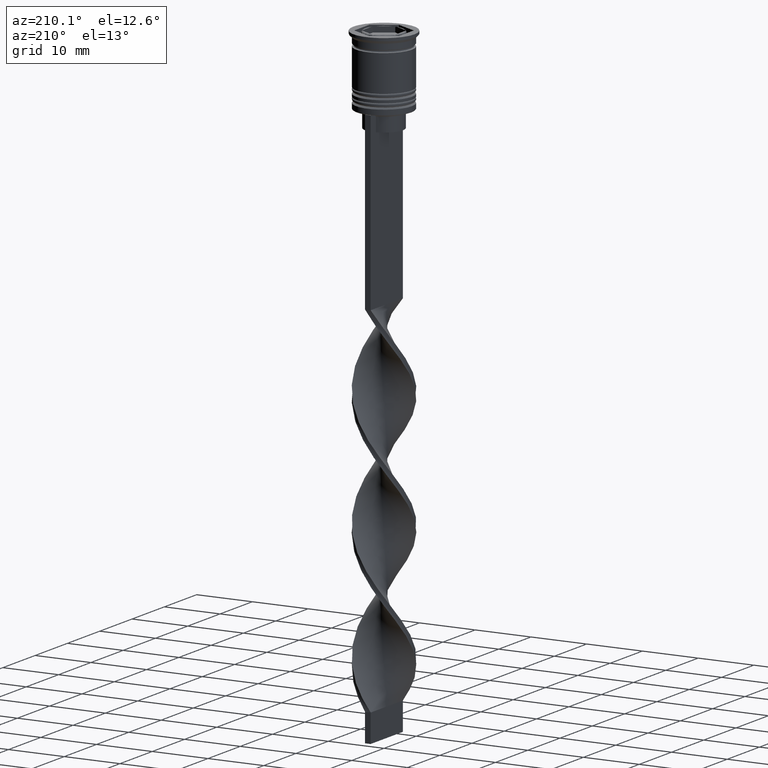
[diagram: clean part render]
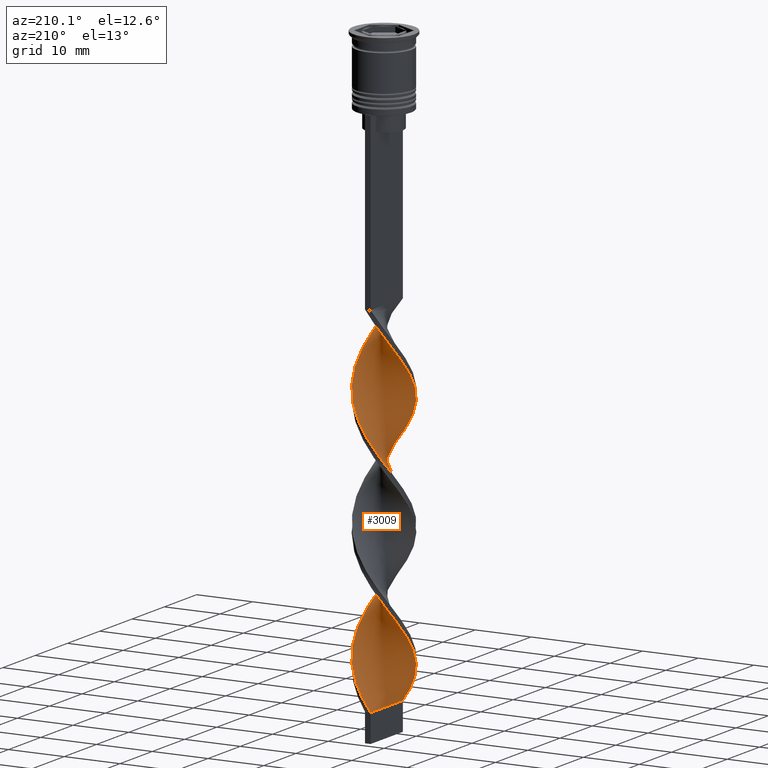
[diagram: same view with one face highlighted and labeled with its STEP entity id]
A machine part, auxiliary view. The second image highlights one B-rep face of the part: STEP entity #3009.
In plain terms, the highlighted face is a freeform B-spline surface patch.
Its self-contained STEP definition (entity closure, byte-faithful):
#2 = CARTESIAN_POINT ( 'NONE',  ( -4.903276030362609283, -1.099037838325638727, -76.32051282051281760 ) ) ;
#8 = CARTESIAN_POINT ( 'NONE',  ( -5.010902036907450174, -0.7163302668880179302, -98.47435897435896379 ) ) ;
#15 = CARTESIAN_POINT ( 'NONE',  ( 4.225728863414809133, -2.786661774892331245, -72.21794871794871540 ) ) ;
#22 = CARTESIAN_POINT ( 'NONE',  ( 5.023812710617931110, -0.1063289642275889874, -96.01282051282051100 ) ) ;
#27 = CARTESIAN_POINT ( 'NONE',  ( 5.036723384328412934, 0.5036723384328410935, -54.16666666666665719 ) ) ;
#34 = CARTESIAN_POINT ( 'NONE',  ( -2.941357917118425203, 4.074115069975904113, -48.42307692307691269 ) ) ;
#38 = CARTESIAN_POINT ( 'NONE',  ( 3.436045048790599132, 3.716969558312884558, -101.7564102564102484 ) ) ;
#44 = CARTESIAN_POINT ( 'NONE',  ( 2.256988544190329016, 4.530813501584093572, -83.70512820512820440 ) ) ;
#53 = CARTESIAN_POINT ( 'NONE',  ( -4.398951702833861610, -2.428831800708950883, -100.9358974358974308 ) ) ;
#82 = CARTESIAN_POINT ( 'NONE',  ( -4.497778769905805163, -2.240532556555384858, -77.96153846153845279 ) ) ;
#88 = VERTEX_POINT ( 'NONE', #3376 ) ;
#98 = CARTESIAN_POINT ( 'NONE',  ( 3.830886956102703245, 3.251815666602606569, -100.9358974358974308 ) ) ;
#108 = CARTESIAN_POINT ( 'NONE',  ( -5.023812710617932886, -0.1063289642275874608, -97.65384615384614619 ) ) ;
#117 = CARTESIAN_POINT ( 'NONE',  ( 2.941357917118426091, 4.074115069975901449, -102.5769230769230660 ) ) ;
#135 = CARTESIAN_POINT ( 'NONE',  ( 4.903276030362607507, 1.099037838325641392, -97.65384615384614619 ) ) ;
#147 = CARTESIAN_POINT ( 'NONE',  ( 2.941357917118426091, 4.074115069975901449, -102.5769230769230660 ) ) ;
#157 = CARTESIAN_POINT ( 'NONE',  ( -0.1071099161113027859, 5.060710991611132137, -44.32051282051282470 ) ) ;
#170 = CARTESIAN_POINT ( 'NONE',  ( -3.275699201900569069, -3.859023582904238303, -60.73076923076922640 ) ) ;
#178 = CARTESIAN_POINT ( 'NONE',  ( 2.766343873045447044, -4.194918542244165494, -46.78205128205127750 ) ) ;
#223 = CARTESIAN_POINT ( 'NONE',  ( 2.446670785446252161, -4.431260581638921892, -68.93589743589743080 ) ) ;
#229 = CARTESIAN_POINT ( 'NONE',  ( -4.852383656948343393, -1.305516313869969913, -56.62820512820513130 ) ) ;
#234 = CARTESIAN_POINT ( 'NONE',  ( -4.398951702833859834, 2.428831800708950883, -71.39743589743588359 ) ) ;
#240 = CARTESIAN_POINT ( 'NONE',  ( 1.107109916111302717, -4.939289008388868751, -44.32051282051282470 ) ) ;
#248 = CARTESIAN_POINT ( 'NONE',  ( -0.5000000000000006661, -5.000000000000000888, -64.83333333333332860 ) ) ;
#253 = CARTESIAN_POINT ( 'NONE',  ( -1.107109916111301606, 4.939289008388868751, -65.65384615384614619 ) ) ;
#258 = CARTESIAN_POINT ( 'NONE',  ( -4.497778769905806939, 2.240532556555386634, -94.37179487179486159 ) ) ;
#264 = CARTESIAN_POINT ( 'NONE',  ( -2.446670785446253049, 4.431260581638920115, -90.26923076923077360 ) ) ;
#268 = CARTESIAN_POINT ( 'NONE',  ( 4.398951702833859834, -2.428831800708950883, -92.73076923076922640 ) ) ;
#279 = CARTESIAN_POINT ( 'NONE',  ( -4.903276030362609283, 1.099037838325643168, -96.01282051282051100 ) ) ;
#287 = CARTESIAN_POINT ( 'NONE',  ( -1.107109916111305159, -4.939289008388870528, -64.01282051282051100 ) ) ;
#292 = CARTESIAN_POINT ( 'NONE',  ( 3.275699201900567292, -3.859023582904237415, -90.26923076923077360 ) ) ;
#298 = CARTESIAN_POINT ( 'NONE',  ( 0.5000000000000000000, 5.000000000000000888, -86.16666666666667140 ) ) ;
#306 = CARTESIAN_POINT ( 'NONE',  ( -4.104038128678487496, -2.962961240565977761, -59.08974358974358410 ) ) ;
#311 = CARTESIAN_POINT ( 'NONE',  ( 4.497778769905805163, 2.240532556555384414, -99.29487179487178139 ) ) ;
#315 = CARTESIAN_POINT ( 'NONE',  ( 4.225728863414809133, 2.786661774892327248, -57.44871794871794890 ) ) ;
#334 = CARTESIAN_POINT ( 'NONE',  ( 3.436045048790599132, 3.716969558312884558, -101.7564102564102484 ) ) ;
#343 = CARTESIAN_POINT ( 'NONE',  ( -4.225728863414810910, 2.786661774892329024, -93.55128205128204399 ) ) ;
#355 = CARTESIAN_POINT ( 'NONE',  ( 1.880887847392238132, 4.659641714287932501, -61.55128205128204399 ) ) ;
#371 = CARTESIAN_POINT ( 'NONE',  ( 0.5000000000000000000, -4.999999999999999112, -86.16666666666667140 ) ) ;
#384 = CARTESIAN_POINT ( 'NONE',  ( -3.436045048790600909, -3.716969558312882782, -80.42307692307691980 ) ) ;
#398 = CARTESIAN_POINT ( 'NONE',  ( 1.880887847392238132, 4.659641714287932501, -104.2179487179487012 ) ) ;
#405 = CARTESIAN_POINT ( 'NONE',  ( -3.689868665289524952, 3.410992411735108476, -69.75641025641024839 ) ) ;
#459 = CARTESIAN_POINT ( 'NONE',  ( 4.225728863414809133, -2.786661774892330801, -72.21794871794871540 ) ) ;
#477 = CARTESIAN_POINT ( 'NONE',  ( -0.7111074127247628551, 4.974366919274039844, -45.14102564102563520 ) ) ;
#496 = CARTESIAN_POINT ( 'NONE',  ( -1.682049230150816532, -4.735051254986481162, -63.19230769230768630 ) ) ;
#508 = CARTESIAN_POINT ( 'NONE',  ( 4.852383656948341617, -1.305516313869971246, -94.37179487179486159 ) ) ;
#515 = CARTESIAN_POINT ( 'NONE',  ( 5.023812710617932886, 0.1063289642275847546, -76.32051282051281760 ) ) ;
#524 = CARTESIAN_POINT ( 'NONE',  ( -1.315104909338222772, 4.888022846936949328, -45.96153846153845990 ) ) ;
#529 = CARTESIAN_POINT ( 'NONE',  ( -1.682049230150812980, 4.735051254986481162, -66.47435897435896379 ) ) ;
#534 = CARTESIAN_POINT ( 'NONE',  ( 3.275699201900569513, 3.859023582904238303, -82.06410256410255499 ) ) ;
#542 = CARTESIAN_POINT ( 'NONE',  ( -0.7111074127247628551, 4.974366919274039844, -87.80769230769230660 ) ) ;
#547 = CARTESIAN_POINT ( 'NONE',  ( 2.766343873045447044, -4.194918542244165494, -89.44871794871794179 ) ) ;
#553 = CARTESIAN_POINT ( 'NONE',  ( 3.436045048790599132, 3.716969558312884558, -59.08974358974359120 ) ) ;
#559 = CARTESIAN_POINT ( 'NONE',  ( 0.5000000000000000000, 5.000000000000000888, -43.50000000000000000 ) ) ;
#565 = CARTESIAN_POINT ( 'NONE',  ( -2.446670785446253493, -4.431260581638918339, -82.06410256410255499 ) ) ;
#576 = CARTESIAN_POINT ( 'NONE',  ( 4.769828676396805633, -1.694403338218443800, -73.85897435897436480 ) ) ;
#583 = CARTESIAN_POINT ( 'NONE',  ( 3.275699201900569513, 3.859023582904238303, -82.06410256410255499 ) ) ;
#588 = CARTESIAN_POINT ( 'NONE',  ( 4.693865276989234836, -1.894702360851923340, -50.88461538461537970 ) ) ;
#594 = CARTESIAN_POINT ( 'NONE',  ( -4.104038128678486608, -2.962961240565977317, -101.7564102564102484 ) ) ;
#600 = CARTESIAN_POINT ( 'NONE',  ( -1.682049230150816532, -4.735051254986481162, -105.8589743589743506 ) ) ;
#605 = CARTESIAN_POINT ( 'NONE',  ( 2.446670785446252605, 4.431260581638918339, -103.3974358974358836 ) ) ;
#609 = CARTESIAN_POINT ( 'NONE',  ( 4.398951702833859834, -2.428831800708950883, -92.73076923076922640 ) ) ;
#628 = CARTESIAN_POINT ( 'NONE',  ( 5.023812710617931110, -0.1063289642275889874, -96.01282051282051100 ) ) ;
#645 = CARTESIAN_POINT ( 'NONE',  ( 4.693865276989234836, -1.894702360851923117, -93.55128205128204399 ) ) ;
#653 = CARTESIAN_POINT ( 'NONE',  ( -4.104038128678487496, -2.962961240565977761, -101.7564102564102484 ) ) ;
#663 = CARTESIAN_POINT ( 'NONE',  ( 0.7111074127247642984, 4.974366919274038068, -105.8589743589743506 ) ) ;
#677 = CARTESIAN_POINT ( 'NONE',  ( -4.225728863414810910, -2.786661774892325028, -78.78205128205127039 ) ) ;
#713 = CARTESIAN_POINT ( 'NONE',  ( -4.104038128678486608, -2.962961240565977317, -59.08974358974359120 ) ) ;
#718 = CARTESIAN_POINT ( 'NONE',  ( 0.7111074127247642984, 4.974366919274038068, -105.8589743589743506 ) ) ;
#728 = CARTESIAN_POINT ( 'NONE',  ( -0.5000000000000006661, -5.000000000000000888, -64.83333333333332860 ) ) ;
#734 = VECTOR ( 'NONE', #3157, 1000.000000000000000 ) ;
#779 = CARTESIAN_POINT ( 'NONE',  ( -2.941357917118426535, -4.074115069975901449, -81.24358974358973740 ) ) ;
#785 = CARTESIAN_POINT ( 'NONE',  ( 3.436045048790597800, -3.716969558312888555, -70.57692307692306599 ) ) ;
#787 = CARTESIAN_POINT ( 'NONE',  ( -0.5000000000000002220, -1.666666666666667851, -107.5000000000000000 ) ) ;
#794 = CARTESIAN_POINT ( 'NONE',  ( 4.769828676396804745, -1.694403338218443578, -73.85897435897436480 ) ) ;
#800 = CARTESIAN_POINT ( 'NONE',  ( 4.769828676396803857, 1.694403338218442689, -55.80769230769230660 ) ) ;
#808 = CARTESIAN_POINT ( 'NONE',  ( -5.023812710617932886, -0.1063289642275874608, -97.65384615384614619 ) ) ;
#815 = CARTESIAN_POINT ( 'NONE',  ( -4.693865276989236612, -1.894702360851923784, -57.44871794871794890 ) ) ;
#818 = CARTESIAN_POINT ( 'NONE',  ( -4.693865276989233060, 1.894702360851926004, -72.21794871794871540 ) ) ;
#823 = CARTESIAN_POINT ( 'NONE',  ( 5.036723384328414710, -0.5036723384328424258, -75.49999999999998579 ) ) ;
#831 = CARTESIAN_POINT ( 'NONE',  ( -1.880887847392238132, 4.659641714287934278, -46.78205128205127750 ) ) ;
#837 = CARTESIAN_POINT ( 'NONE',  ( 1.107109916111302717, -4.939289008388868751, -86.98717948717948900 ) ) ;
#845 = CARTESIAN_POINT ( 'NONE',  ( -3.830886956102704133, 3.251815666602608346, -92.73076923076922640 ) ) ;
#852 = CARTESIAN_POINT ( 'NONE',  ( -2.256988544190328572, -4.530813501584093572, -62.37179487179486870 ) ) ;
#857 = LINE ( 'NONE', #2850, #734 ) ;
#860 = CARTESIAN_POINT ( 'NONE',  ( 4.104038128678484831, -2.962961240565978205, -49.24358974358974450 ) ) ;
#869 = CARTESIAN_POINT ( 'NONE',  ( -1.880887847392238132, 4.659641714287934278, -89.44871794871794179 ) ) ;
#879 = CARTESIAN_POINT ( 'NONE',  ( 2.941357917118424758, -4.074115069975905001, -69.75641025641024839 ) ) ;
#889 = CARTESIAN_POINT ( 'NONE',  ( -2.256988544190328572, -4.530813501584093572, -105.0384615384615330 ) ) ;
#907 = CARTESIAN_POINT ( 'NONE',  ( 4.852383656948341617, -1.305516313869971246, -94.37179487179486159 ) ) ;
#924 = CARTESIAN_POINT ( 'NONE',  ( 1.682049230150814534, -4.735051254986480274, -87.80769230769230660 ) ) ;
#942 = CARTESIAN_POINT ( 'NONE',  ( -5.036723384328412934, -0.5036723384328404274, -75.49999999999998579 ) ) ;
#946 = B_SPLINE_CURVE_WITH_KNOTS ( 'NONE', 3,
 ( #1976, #787, #1934, #1695 ),
 .UNSPECIFIED., .F., .F.,
 ( 4, 4 ),
 ( 0.000000000000000000, 1.000000000000000000 ),
 .UNSPECIFIED. ) ;
#949 = CARTESIAN_POINT ( 'NONE',  ( -5.010902036907449286, -0.7163302668880179302, -98.47435897435896379 ) ) ;
#960 = CARTESIAN_POINT ( 'NONE',  ( -4.398951702833859834, 2.428831800708950883, -71.39743589743588359 ) ) ;
#971 = CARTESIAN_POINT ( 'NONE',  ( 2.256988544190326351, -4.530813501584092684, -45.96153846153845990 ) ) ;
#993 = CARTESIAN_POINT ( 'NONE',  ( -4.769828676396804745, 1.694403338218444244, -52.52564102564103621 ) ) ;
#1003 = CARTESIAN_POINT ( 'NONE',  ( 0.5000000000000000000, -4.999999999999999112, -43.50000000000000000 ) ) ;
#1011 = CARTESIAN_POINT ( 'NONE',  ( -2.256988544190328572, -4.530813501584093572, -62.37179487179486870 ) ) ;
#1063 = CARTESIAN_POINT ( 'NONE',  ( 0.5000000000000000000, -4.999999999999999112, -86.16666666666667140 ) ) ;
#1071 = CARTESIAN_POINT ( 'NONE',  ( -4.497778769905806939, 2.240532556555386634, -51.70512820512820440 ) ) ;
#1079 = CARTESIAN_POINT ( 'NONE',  ( -1.682049230150816532, -4.735051254986481162, -63.19230769230768630 ) ) ;
#1083 = CARTESIAN_POINT ( 'NONE',  ( -5.010902036907447510, 0.7163302668880177082, -73.85897435897436480 ) ) ;
#1090 = CARTESIAN_POINT ( 'NONE',  ( 4.903276030362609283, -1.099037838325644945, -74.67948717948718240 ) ) ;
#1096 = CARTESIAN_POINT ( 'NONE',  ( 1.682049230150819419, 4.735051254986480274, -84.52564102564103621 ) ) ;
#1102 = CARTESIAN_POINT ( 'NONE',  ( 4.497778769905805163, 2.240532556555384414, -56.62820512820513130 ) ) ;
#1108 = CARTESIAN_POINT ( 'NONE',  ( 1.682049230150814534, -4.735051254986480274, -45.14102564102563520 ) ) ;
#1116 = CARTESIAN_POINT ( 'NONE',  ( -4.497778769905806939, 2.240532556555386634, -51.70512820512820440 ) ) ;
#1123 = CARTESIAN_POINT ( 'NONE',  ( -1.880887847392241019, -4.659641714287931613, -82.88461538461537259 ) ) ;
#1127 = CARTESIAN_POINT ( 'NONE',  ( -1.682049230150816532, -4.735051254986481162, -105.8589743589743506 ) ) ;
#1137 = CARTESIAN_POINT ( 'NONE',  ( -5.023812710617932886, -0.1063289642275874608, -54.98717948717948190 ) ) ;
#1142 = CARTESIAN_POINT ( 'NONE',  ( 4.903276030362607507, 1.099037838325641392, -97.65384615384614619 ) ) ;
#1148 = CARTESIAN_POINT ( 'NONE',  ( -4.398951702833861610, -2.428831800708950883, -100.9358974358974308 ) ) ;
#1155 = CARTESIAN_POINT ( 'NONE',  ( -4.398951702833861610, -2.428831800708950883, -58.26923076923076650 ) ) ;
#1161 = CARTESIAN_POINT ( 'NONE',  ( 1.315104909338224104, 4.888022846936946664, -105.0384615384615188 ) ) ;
#1172 = CARTESIAN_POINT ( 'NONE',  ( 5.010902036907451063, 0.7163302668880160429, -77.14102564102563520 ) ) ;
#1192 = CARTESIAN_POINT ( 'NONE',  ( -1.107109916111301828, 4.939289008388868751, -65.65384615384614619 ) ) ;
#1209 = CARTESIAN_POINT ( 'NONE',  ( 1.315104909338224326, 4.888022846936946664, -62.37179487179486870 ) ) ;
#1218 =( BOUNDED_SURFACE ( )  B_SPLINE_SURFACE ( 1, 2, ( 
 ( #3609, #157, #477, #2430, #3343, #1581, #2710, #2162, #3652, #2777, #1071, #993, #2729, #2446, #3302, #1281, #1301, #1917, #3287, #713, #3594, #170, #3063, #1011, #496, #3324, #728, #1862, #1634, #3024, #2223, #223, #3363, #785, #1933, #459, #2742, #576, #1090, #823, #515, #1172, #1694, #2241, #3100, #1414, #3444, #534, #1733, #44, #3142, #3469, #298, #2298, #1676, #1954, #869, #2816, #1716, #3381, #845, #2322, #258, #1393, #279, #2525, #808, #8, #2280, #1994, #1148, #594, #2799, #2563, #1658, #889, #1127, #2541, #2875 ),
 ( #3688, #240, #1108, #3423, #3083, #1451, #2262, #2858, #2020, #1431, #1375, #2581, #3672, #27, #3401, #1975, #3119, #315, #2596, #553, #2836, #3166, #355, #1209, #2035, #2914, #3221, #1192, #1790, #1490, #3486, #2073, #405, #2642, #960, #1774, #3253, #1541, #3520, #942, #1523, #2390, #82, #677, #2655, #384, #2688, #2358, #3501, #2108, #3185, #2944, #371, #1224, #924, #3202, #2338, #2890, #2670, #2091, #609, #645, #907, #1753, #628, #2053, #135, #2931, #3236, #1505, #98, #334, #117, #2373, #3538, #1261, #663, #1804, #1243 ) ),
 .UNSPECIFIED., .F., .F., .F. ) 
 B_SPLINE_SURFACE_WITH_KNOTS ( ( 2, 2 ),
 ( 3, 2, 2, 2, 2, 2, 2, 2, 2, 2, 2, 2, 2, 2, 2, 2, 2, 2, 2, 2, 2, 2, 2, 2, 2, 2, 2, 2, 2, 2, 2, 2, 2, 2, 2, 2, 2, 2, 2, 3 ),
 ( 0.000000000000000000, 1.000000000000000000 ),
 ( 0.000000000000000000, 0.01923076923076923184, 0.03846153846153846367, 0.05769230769230769551, 0.07692307692307692735, 0.09615384615384615918, 0.1153846153846153910, 0.1346153846153846090, 0.1538461538461538547, 0.1730769230769230727, 0.1923076923076923184, 0.2115384615384615363, 0.2307692307692307820, 0.2500000000000000000, 0.2692307692307692180, 0.2884615384615384359, 0.3076923076923077094, 0.3269230769230769273, 0.3461538461538461453, 0.3653846153846153633, 0.3846153846153846367, 0.4038461538461538547, 0.4230769230769230727, 0.4423076923076922906, 0.4615384615384615641, 0.4807692307692307820, 0.5000000000000000000, 0.5192307692307692735, 0.5384615384615384359, 0.5576923076923077094, 0.5769230769230768718, 0.5961538461538461453, 0.6153846153846154188, 0.6346153846153845812, 0.6538461538461538547, 0.6730769230769231282, 0.6923076923076922906, 0.7115384615384615641, 0.7307692307692307265, 0.7500000000000000000 ),
 .UNSPECIFIED. ) 
 GEOMETRIC_REPRESENTATION_ITEM ( )  RATIONAL_B_SPLINE_SURFACE ( (
 ( 1.000000000000000000, 0.9927088740980539727, 1.000000000000000000, 0.9927088740980539727, 1.000000000000000000, 0.9927088740980539727, 1.000000000000000000, 0.9927088740980539727, 1.000000000000000000, 0.9927088740980539727, 1.000000000000000000, 0.9927088740980539727, 1.000000000000000000, 0.9927088740980539727, 1.000000000000000000, 0.9927088740980539727, 1.000000000000000000, 0.9927088740980539727, 1.000000000000000000, 0.9927088740980539727, 1.000000000000000000, 0.9927088740980539727, 1.000000000000000000, 0.9927088740980539727, 1.000000000000000000, 0.9927088740980539727, 1.000000000000000000, 0.9927088740980539727, 1.000000000000000000, 0.9927088740980539727, 1.000000000000000000, 0.9927088740980539727, 1.000000000000000000, 0.9927088740980539727, 1.000000000000000000, 0.9927088740980539727, 1.000000000000000000, 0.9927088740980539727, 1.000000000000000000, 0.9927088740980539727, 1.000000000000000000, 0.9927088740980539727, 1.000000000000000000, 0.9927088740980539727, 1.000000000000000000, 0.9927088740980539727, 1.000000000000000000, 0.9927088740980539727, 1.000000000000000000, 0.9927088740980539727, 1.000000000000000000, 0.9927088740980539727, 1.000000000000000000, 0.9927088740980539727, 1.000000000000000000, 0.9927088740980539727, 1.000000000000000000, 0.9927088740980539727, 1.000000000000000000, 0.9927088740980539727, 1.000000000000000000, 0.9927088740980539727, 1.000000000000000000, 0.9927088740980539727, 1.000000000000000000, 0.9927088740980539727, 1.000000000000000000, 0.9927088740980539727, 1.000000000000000000, 0.9927088740980539727, 1.000000000000000000, 0.9927088740980539727, 1.000000000000000000, 0.9927088740980539727, 1.000000000000000000, 0.9927088740980539727, 1.000000000000000000, 0.9927088740980539727, 1.000000000000000000),
 ( 1.000000000000000000, 0.9927088740980539727, 1.000000000000000000, 0.9927088740980539727, 1.000000000000000000, 0.9927088740980539727, 1.000000000000000000, 0.9927088740980539727, 1.000000000000000000, 0.9927088740980539727, 1.000000000000000000, 0.9927088740980539727, 1.000000000000000000, 0.9927088740980539727, 1.000000000000000000, 0.9927088740980539727, 1.000000000000000000, 0.9927088740980539727, 1.000000000000000000, 0.9927088740980539727, 1.000000000000000000, 0.9927088740980539727, 1.000000000000000000, 0.9927088740980539727, 1.000000000000000000, 0.9927088740980539727, 1.000000000000000000, 0.9927088740980539727, 1.000000000000000000, 0.9927088740980539727, 1.000000000000000000, 0.9927088740980539727, 1.000000000000000000, 0.9927088740980539727, 1.000000000000000000, 0.9927088740980539727, 1.000000000000000000, 0.9927088740980539727, 1.000000000000000000, 0.9927088740980539727, 1.000000000000000000, 0.9927088740980539727, 1.000000000000000000, 0.9927088740980539727, 1.000000000000000000, 0.9927088740980539727, 1.000000000000000000, 0.9927088740980539727, 1.000000000000000000, 0.9927088740980539727, 1.000000000000000000, 0.9927088740980539727, 1.000000000000000000, 0.9927088740980539727, 1.000000000000000000, 0.9927088740980539727, 1.000000000000000000, 0.9927088740980539727, 1.000000000000000000, 0.9927088740980539727, 1.000000000000000000, 0.9927088740980539727, 1.000000000000000000, 0.9927088740980539727, 1.000000000000000000, 0.9927088740980539727, 1.000000000000000000, 0.9927088740980539727, 1.000000000000000000, 0.9927088740980539727, 1.000000000000000000, 0.9927088740980539727, 1.000000000000000000, 0.9927088740980539727, 1.000000000000000000, 0.9927088740980539727, 1.000000000000000000, 0.9927088740980539727, 1.000000000000000000) ) ) 
 REPRESENTATION_ITEM ( '' )  SURFACE ( )  );
#1224 = CARTESIAN_POINT ( 'NONE',  ( 1.107109916111302717, -4.939289008388868751, -86.98717948717948900 ) ) ;
#1243 = CARTESIAN_POINT ( 'NONE',  ( -0.4999999999999993339, 4.999999999999999112, -107.5000000000000000 ) ) ;
#1252 = CARTESIAN_POINT ( 'NONE',  ( -4.693865276989236612, -1.894702360851923784, -100.1153846153846132 ) ) ;
#1255 = CARTESIAN_POINT ( 'NONE',  ( 0.1071099161113048537, 5.060710991611129472, -106.6794871794871824 ) ) ;
#1261 = CARTESIAN_POINT ( 'NONE',  ( 1.315104909338224326, 4.888022846936946664, -105.0384615384615330 ) ) ;
#1281 = CARTESIAN_POINT ( 'NONE',  ( -5.010902036907450174, -0.7163302668880179302, -55.80769230769230660 ) ) ;
#1301 = CARTESIAN_POINT ( 'NONE',  ( -4.852383656948343393, -1.305516313869969913, -56.62820512820513130 ) ) ;
#1313 = CARTESIAN_POINT ( 'NONE',  ( 3.275699201900567292, -3.859023582904237415, -47.60256410256409509 ) ) ;
#1362 = CARTESIAN_POINT ( 'NONE',  ( -0.7111074127247628551, 4.974366919274039844, -45.14102564102563520 ) ) ;
#1366 = CARTESIAN_POINT ( 'NONE',  ( 2.941357917118426091, 4.074115069975901449, -59.91025641025640880 ) ) ;
#1375 = CARTESIAN_POINT ( 'NONE',  ( 4.852383656948341617, -1.305516313869971246, -51.70512820512820440 ) ) ;
#1382 = CARTESIAN_POINT ( 'NONE',  ( 2.256988544190329016, 4.530813501584093572, -83.70512820512820440 ) ) ;
#1386 = CARTESIAN_POINT ( 'NONE',  ( -4.225728863414810910, -2.786661774892325028, -78.78205128205127039 ) ) ;
#1393 = CARTESIAN_POINT ( 'NONE',  ( -4.769828676396804745, 1.694403338218444244, -95.19230769230769340 ) ) ;
#1399 = CARTESIAN_POINT ( 'NONE',  ( 5.010902036907450174, 0.7163302668880160429, -77.14102564102563520 ) ) ;
#1407 = CARTESIAN_POINT ( 'NONE',  ( -2.766343873045446600, 4.194918542244165494, -68.11538461538459899 ) ) ;
#1414 = CARTESIAN_POINT ( 'NONE',  ( 4.104038128678487496, 2.962961240565975096, -80.42307692307691980 ) ) ;
#1421 = CARTESIAN_POINT ( 'NONE',  ( 3.689868665289528504, 3.410992411735106700, -81.24358974358973740 ) ) ;
#1425 = CARTESIAN_POINT ( 'NONE',  ( 5.010902036907448398, -0.7163302668880181523, -95.19230769230769340 ) ) ;
#1431 = CARTESIAN_POINT ( 'NONE',  ( 4.693865276989234836, -1.894702360851923117, -50.88461538461538680 ) ) ;
#1443 = CARTESIAN_POINT ( 'NONE',  ( 4.225728863414809133, 2.786661774892327692, -100.1153846153846132 ) ) ;
#1451 = CARTESIAN_POINT ( 'NONE',  ( 3.275699201900567736, -3.859023582904237415, -47.60256410256408799 ) ) ;
#1482 = CARTESIAN_POINT ( 'NONE',  ( -3.436045048790599132, 3.716969558312887667, -91.91025641025643722 ) ) ;
#1490 = CARTESIAN_POINT ( 'NONE',  ( -2.256988544190325019, 4.530813501584093572, -67.29487179487178139 ) ) ;
#1505 = CARTESIAN_POINT ( 'NONE',  ( 4.225728863414809133, 2.786661774892327248, -100.1153846153846274 ) ) ;
#1514 = CARTESIAN_POINT ( 'NONE',  ( -1.107109916111305159, -4.939289008388870528, -106.6794871794871824 ) ) ;
#1523 = CARTESIAN_POINT ( 'NONE',  ( -4.903276030362609283, -1.099037838325638727, -76.32051282051281760 ) ) ;
#1534 = CARTESIAN_POINT ( 'NONE',  ( -2.941357917118425203, 4.074115069975904113, -91.08974358974359120 ) ) ;
#1541 = CARTESIAN_POINT ( 'NONE',  ( -5.010902036907448398, 0.7163302668880177082, -73.85897435897436480 ) ) ;
#1581 = CARTESIAN_POINT ( 'NONE',  ( -2.446670785446253049, 4.431260581638921003, -47.60256410256408799 ) ) ;
#1634 = CARTESIAN_POINT ( 'NONE',  ( 0.7111074127247614118, -4.974366919274040733, -66.47435897435896379 ) ) ;
#1644 = CARTESIAN_POINT ( 'NONE',  ( -2.446670785446253049, 4.431260581638920115, -47.60256410256409509 ) ) ;
#1651 = CARTESIAN_POINT ( 'NONE',  ( -5.036723384328413822, -0.5036723384328405384, -75.50000000000000000 ) ) ;
#1658 = CARTESIAN_POINT ( 'NONE',  ( -2.766343873045448376, -4.194918542244166382, -104.2179487179487012 ) ) ;
#1661 = VERTEX_POINT ( 'NONE', #3616 ) ;
#1664 = CARTESIAN_POINT ( 'NONE',  ( -0.1071099161113027859, 5.060710991611131249, -44.32051282051282470 ) ) ;
#1669 = CARTESIAN_POINT ( 'NONE',  ( 3.689868665289525396, -3.410992411735107588, -48.42307692307691269 ) ) ;
#1676 = CARTESIAN_POINT ( 'NONE',  ( -0.7111074127247628551, 4.974366919274039844, -87.80769230769230660 ) ) ;
#1682 = CARTESIAN_POINT ( 'NONE',  ( -1.315104909338222772, 4.888022846936949328, -88.62820512820512420 ) ) ;
#1687 = CARTESIAN_POINT ( 'NONE',  ( -3.689868665289524952, 3.410992411735108476, -69.75641025641024839 ) ) ;
#1694 = CARTESIAN_POINT ( 'NONE',  ( 4.852383656948343393, 1.305516313869970801, -77.96153846153845279 ) ) ;
#1695 = CARTESIAN_POINT ( 'NONE',  ( -0.4999999999999993339, 4.999999999999999112, -107.5000000000000000 ) ) ;
#1700 = CARTESIAN_POINT ( 'NONE',  ( -2.766343873045448376, -4.194918542244166382, -61.55128205128204399 ) ) ;
#1707 = CARTESIAN_POINT ( 'NONE',  ( 4.693865276989234836, -1.894702360851923340, -93.55128205128204399 ) ) ;
#1716 = CARTESIAN_POINT ( 'NONE',  ( -2.941357917118425203, 4.074115069975904113, -91.08974358974359120 ) ) ;
#1724 = CARTESIAN_POINT ( 'NONE',  ( 4.398951702833861610, 2.428831800708950439, -79.60256410256410220 ) ) ;
#1726 = CARTESIAN_POINT ( 'NONE',  ( 5.036723384328413822, 0.5036723384328410935, -96.83333333333332860 ) ) ;
#1733 = CARTESIAN_POINT ( 'NONE',  ( 2.766343873045451041, 4.194918542244163717, -82.88461538461537259 ) ) ;
#1742 = CARTESIAN_POINT ( 'NONE',  ( -4.852383656948343393, -1.305516313869969913, -99.29487179487178139 ) ) ;
#1747 = CARTESIAN_POINT ( 'NONE',  ( 3.830886956102703245, 3.251815666602606569, -100.9358974358974308 ) ) ;
#1753 = CARTESIAN_POINT ( 'NONE',  ( 5.010902036907449286, -0.7163302668880181523, -95.19230769230769340 ) ) ;
#1774 = CARTESIAN_POINT ( 'NONE',  ( -4.693865276989233060, 1.894702360851926226, -72.21794871794871540 ) ) ;
#1790 = CARTESIAN_POINT ( 'NONE',  ( -1.682049230150812980, 4.735051254986481162, -66.47435897435896379 ) ) ;
#1804 = CARTESIAN_POINT ( 'NONE',  ( 0.1071099161113048398, 5.060710991611130360, -106.6794871794871682 ) ) ;
#1809 = ORIENTED_EDGE ( 'NONE', *, *, #1821, .F. ) ;
#1811 = CARTESIAN_POINT ( 'NONE',  ( -4.497778769905806939, 2.240532556555386634, -94.37179487179486159 ) ) ;
#1821 = EDGE_CURVE ( 'NONE', #1661, #2969, #2641, .T. ) ;
#1862 = CARTESIAN_POINT ( 'NONE',  ( 0.1071099161113016063, -5.060710991611132137, -65.65384615384614619 ) ) ;
#1917 = CARTESIAN_POINT ( 'NONE',  ( -4.693865276989236612, -1.894702360851923562, -57.44871794871794890 ) ) ;
#1927 = CARTESIAN_POINT ( 'NONE',  ( 4.852383656948341617, -1.305516313869971246, -51.70512820512820440 ) ) ;
#1933 = CARTESIAN_POINT ( 'NONE',  ( 3.830886956102704133, -3.251815666602608346, -71.39743589743588359 ) ) ;
#1934 = CARTESIAN_POINT ( 'NONE',  ( -0.4999999999999997780, 1.666666666666666075, -107.5000000000000000 ) ) ;
#1943 = CARTESIAN_POINT ( 'NONE',  ( 5.036723384328415598, -0.5036723384328424258, -75.50000000000000000 ) ) ;
#1948 = CARTESIAN_POINT ( 'NONE',  ( 5.023812710617931110, -0.1063289642275889874, -53.34615384615383959 ) ) ;
#1954 = CARTESIAN_POINT ( 'NONE',  ( -1.315104909338222772, 4.888022846936949328, -88.62820512820513841 ) ) ;
#1961 = CARTESIAN_POINT ( 'NONE',  ( 0.5000000000000000000, 5.000000000000000888, -86.16666666666667140 ) ) ;
#1967 = CARTESIAN_POINT ( 'NONE',  ( -4.769828676396803857, -1.694403338218441135, -77.14102564102563520 ) ) ;
#1975 = CARTESIAN_POINT ( 'NONE',  ( 4.769828676396803857, 1.694403338218442912, -55.80769230769230660 ) ) ;
#1976 = CARTESIAN_POINT ( 'NONE',  ( -0.5000000000000006661, -5.000000000000000888, -107.5000000000000000 ) ) ;
#1981 = CARTESIAN_POINT ( 'NONE',  ( 4.497778769905806939, -2.240532556555387078, -73.03846153846153300 ) ) ;
#1987 = CARTESIAN_POINT ( 'NONE',  ( 1.880887847392238132, 4.659641714287932501, -61.55128205128204399 ) ) ;
#1994 = CARTESIAN_POINT ( 'NONE',  ( -4.693865276989236612, -1.894702360851923562, -100.1153846153846274 ) ) ;
#2001 = CARTESIAN_POINT ( 'NONE',  ( 5.023812710617932886, 0.1063289642275847546, -76.32051282051281760 ) ) ;
#2010 = CARTESIAN_POINT ( 'NONE',  ( -2.256988544190325019, 4.530813501584093572, -67.29487179487178139 ) ) ;
#2020 = CARTESIAN_POINT ( 'NONE',  ( 4.398951702833859834, -2.428831800708950883, -50.06410256410256210 ) ) ;
#2026 = CARTESIAN_POINT ( 'NONE',  ( 4.693865276989236612, 1.894702360851921119, -78.78205128205127039 ) ) ;
#2035 = CARTESIAN_POINT ( 'NONE',  ( 0.7111074127247642984, 4.974366919274038068, -63.19230769230768630 ) ) ;
#2053 = CARTESIAN_POINT ( 'NONE',  ( 5.036723384328412934, 0.5036723384328410935, -96.83333333333332860 ) ) ;
#2073 = CARTESIAN_POINT ( 'NONE',  ( -3.275699201900567736, 3.859023582904237415, -68.93589743589743080 ) ) ;
#2081 = CARTESIAN_POINT ( 'NONE',  ( -4.903276030362609283, 1.099037838325643168, -96.01282051282051100 ) ) ;
#2091 = CARTESIAN_POINT ( 'NONE',  ( 4.104038128678483943, -2.962961240565977761, -91.91025641025643722 ) ) ;
#2098 = CARTESIAN_POINT ( 'NONE',  ( -3.830886956102704133, 3.251815666602608346, -92.73076923076922640 ) ) ;
#2108 = CARTESIAN_POINT ( 'NONE',  ( -1.315104909338224770, -4.888022846936946664, -83.70512820512820440 ) ) ;
#2162 = CARTESIAN_POINT ( 'NONE',  ( -3.436045048790599132, 3.716969558312887667, -49.24358974358973740 ) ) ;
#2215 = CARTESIAN_POINT ( 'NONE',  ( -1.315104909338224548, -4.888022846936946664, -83.70512820512820440 ) ) ;
#2223 = CARTESIAN_POINT ( 'NONE',  ( 1.880887847392237688, -4.659641714287934278, -68.11538461538459899 ) ) ;
#2231 = CARTESIAN_POINT ( 'NONE',  ( 0.7111074127247614118, -4.974366919274040733, -66.47435897435896379 ) ) ;
#2233 = CARTESIAN_POINT ( 'NONE',  ( -3.830886956102704577, -3.251815666602606125, -79.60256410256410220 ) ) ;
#2241 = CARTESIAN_POINT ( 'NONE',  ( 4.693865276989236612, 1.894702360851920897, -78.78205128205127039 ) ) ;
#2242 = EDGE_CURVE ( 'NONE', #2969, #3517, #946, .T. ) ;
#2250 = CARTESIAN_POINT ( 'NONE',  ( 1.107109916111305603, 4.939289008388870528, -85.34615384615385381 ) ) ;
#2256 = CARTESIAN_POINT ( 'NONE',  ( 2.446670785446252605, 4.431260581638918339, -60.73076923076922640 ) ) ;
#2262 = CARTESIAN_POINT ( 'NONE',  ( 3.689868665289525396, -3.410992411735107588, -48.42307692307691269 ) ) ;
#2269 = CARTESIAN_POINT ( 'NONE',  ( 0.1071099161113016063, -5.060710991611131249, -65.65384615384614619 ) ) ;
#2275 = CARTESIAN_POINT ( 'NONE',  ( -0.4999999999999993339, 4.999999999999999112, -64.83333333333332860 ) ) ;
#2278 = ORIENTED_EDGE ( 'NONE', *, *, #3189, .T. ) ;
#2280 = CARTESIAN_POINT ( 'NONE',  ( -4.852383656948343393, -1.305516313869969913, -99.29487179487178139 ) ) ;
#2287 = CARTESIAN_POINT ( 'NONE',  ( -3.275699201900569069, -3.859023582904238303, -60.73076923076922640 ) ) ;
#2294 = CARTESIAN_POINT ( 'NONE',  ( 4.398951702833859834, -2.428831800708950883, -50.06410256410256210 ) ) ;
#2298 = CARTESIAN_POINT ( 'NONE',  ( -0.1071099161113027859, 5.060710991611132137, -86.98717948717948900 ) ) ;
#2305 = CARTESIAN_POINT ( 'NONE',  ( -3.689868665289528060, -3.410992411735107144, -59.91025641025640880 ) ) ;
#2322 = CARTESIAN_POINT ( 'NONE',  ( -4.225728863414810910, 2.786661774892328580, -93.55128205128204399 ) ) ;
#2338 = CARTESIAN_POINT ( 'NONE',  ( 2.766343873045447044, -4.194918542244165494, -89.44871794871794179 ) ) ;
#2348 = CARTESIAN_POINT ( 'NONE',  ( -2.766343873045448376, -4.194918542244166382, -104.2179487179487012 ) ) ;
#2358 = CARTESIAN_POINT ( 'NONE',  ( -2.446670785446253493, -4.431260581638919227, -82.06410256410255499 ) ) ;
#2373 = CARTESIAN_POINT ( 'NONE',  ( 2.446670785446252605, 4.431260581638919227, -103.3974358974358694 ) ) ;
#2390 = CARTESIAN_POINT ( 'NONE',  ( -4.769828676396804745, -1.694403338218441357, -77.14102564102563520 ) ) ;
#2398 = CARTESIAN_POINT ( 'NONE',  ( -3.689868665289528060, -3.410992411735107144, -102.5769230769230660 ) ) ;
#2430 = CARTESIAN_POINT ( 'NONE',  ( -1.315104909338222772, 4.888022846936949328, -45.96153846153845279 ) ) ;
#2446 = CARTESIAN_POINT ( 'NONE',  ( -5.036723384328414710, 0.5036723384328417596, -54.16666666666665719 ) ) ;
#2497 = CARTESIAN_POINT ( 'NONE',  ( 1.682049230150814534, -4.735051254986480274, -45.14102564102563520 ) ) ;
#2504 = FACE_OUTER_BOUND ( 'NONE', #3577, .T. ) ;
#2511 = CARTESIAN_POINT ( 'NONE',  ( -4.769828676396803857, 1.694403338218444022, -52.52564102564102910 ) ) ;
#2519 = CARTESIAN_POINT ( 'NONE',  ( 5.010902036907448398, -0.7163302668880181523, -52.52564102564102910 ) ) ;
#2525 = CARTESIAN_POINT ( 'NONE',  ( -5.036723384328414710, 0.5036723384328417596, -96.83333333333332860 ) ) ;
#2534 = CARTESIAN_POINT ( 'NONE',  ( -0.7111074127247671850, -4.974366919274038068, -84.52564102564103621 ) ) ;
#2541 = CARTESIAN_POINT ( 'NONE',  ( -1.107109916111304937, -4.939289008388870528, -106.6794871794871682 ) ) ;
#2549 = CARTESIAN_POINT ( 'NONE',  ( -3.830886956102704133, 3.251815666602608346, -50.06410256410256210 ) ) ;
#2556 = CARTESIAN_POINT ( 'NONE',  ( -4.852383656948341617, 1.305516313869971912, -73.03846153846153300 ) ) ;
#2563 = CARTESIAN_POINT ( 'NONE',  ( -3.275699201900569069, -3.859023582904238303, -103.3974358974358694 ) ) ;
#2570 = CARTESIAN_POINT ( 'NONE',  ( 4.104038128678488384, 2.962961240565975096, -80.42307692307691980 ) ) ;
#2574 = CARTESIAN_POINT ( 'NONE',  ( 2.256988544190326351, -4.530813501584092684, -88.62820512820512420 ) ) ;
#2581 = CARTESIAN_POINT ( 'NONE',  ( 5.010902036907449286, -0.7163302668880181523, -52.52564102564103621 ) ) ;
#2596 = CARTESIAN_POINT ( 'NONE',  ( 3.830886956102703245, 3.251815666602606569, -58.26923076923076650 ) ) ;
#2626 = CARTESIAN_POINT ( 'NONE',  ( -3.275699201900569069, -3.859023582904238303, -103.3974358974358836 ) ) ;
#2641 =( BOUNDED_CURVE ( )  B_SPLINE_CURVE ( 2, ( #559, #1664, #1362, #524, #831, #1644, #34, #3390, #2549, #3430, #1116, #2511, #3126, #3661, #1137, #2805, #229, #815, #1155, #306, #2305, #2287, #1700, #852, #1079, #287, #248, #2269, #2231, #3370, #3454, #3409, #879, #3678, #3152, #15, #1981, #794, #2846, #1943, #2001, #1399, #3092, #2026, #1724, #2570, #1421, #583, #3174, #1382, #1096, #2250, #1961, #3106, #542, #1682, #2823, #264, #1534, #1482, #2098, #343, #1811, #2679, #2081, #3228, #108, #949, #1742, #1252, #53, #653, #2398, #2626, #2348, #3244, #600, #1514, #2649 ),
 .UNSPECIFIED., .F., .T. ) 
 B_SPLINE_CURVE_WITH_KNOTS ( ( 3, 2, 2, 2, 2, 2, 2, 2, 2, 2, 2, 2, 2, 2, 2, 2, 2, 2, 2, 2, 2, 2, 2, 2, 2, 2, 2, 2, 2, 2, 2, 2, 2, 2, 2, 2, 2, 2, 2, 3 ),
 ( 0.000000000000000000, 0.01923076923076923184, 0.03846153846153846367, 0.05769230769230768857, 0.07692307692307692735, 0.09615384615384615918, 0.1153846153846153771, 0.1346153846153846090, 0.1538461538461538547, 0.1730769230769230449, 0.1923076923076923184, 0.2115384615384615363, 0.2307692307692307543, 0.2500000000000000000, 0.2692307692307692180, 0.2884615384615384359, 0.3076923076923077094, 0.3269230769230769273, 0.3461538461538460898, 0.3653846153846153633, 0.3846153846153846367, 0.4038461538461539102, 0.4230769230769230727, 0.4423076923076922906, 0.4615384615384615086, 0.4807692307692307820, 0.5000000000000000000, 0.5192307692307692735, 0.5384615384615384359, 0.5576923076923077094, 0.5769230769230768718, 0.5961538461538461453, 0.6153846153846154188, 0.6346153846153845812, 0.6538461538461538547, 0.6730769230769230171, 0.6923076923076921796, 0.7115384615384615641, 0.7307692307692307265, 0.7500000000000000000 ),
 .UNSPECIFIED. ) 
 CURVE ( )  GEOMETRIC_REPRESENTATION_ITEM ( )  RATIONAL_B_SPLINE_CURVE ( ( 1.000000000000000000, 0.9927088740980539727, 1.000000000000000000, 0.9927088740980539727, 1.000000000000000000, 0.9927088740980539727, 1.000000000000000000, 0.9927088740980539727, 1.000000000000000000, 0.9927088740980539727, 1.000000000000000000, 0.9927088740980539727, 1.000000000000000000, 0.9927088740980539727, 1.000000000000000000, 0.9927088740980539727, 1.000000000000000000, 0.9927088740980539727, 1.000000000000000000, 0.9927088740980539727, 1.000000000000000000, 0.9927088740980539727, 1.000000000000000000, 0.9927088740980539727, 1.000000000000000000, 0.9927088740980539727, 1.000000000000000000, 0.9927088740980539727, 1.000000000000000000, 0.9927088740980539727, 1.000000000000000000, 0.9927088740980539727, 1.000000000000000000, 0.9927088740980539727, 1.000000000000000000, 0.9927088740980539727, 1.000000000000000000, 0.9927088740980539727, 1.000000000000000000, 0.9927088740980539727, 1.000000000000000000, 0.9927088740980539727, 1.000000000000000000, 0.9927088740980539727, 1.000000000000000000, 0.9927088740980539727, 1.000000000000000000, 0.9927088740980539727, 1.000000000000000000, 0.9927088740980539727, 1.000000000000000000, 0.9927088740980539727, 1.000000000000000000, 0.9927088740980539727, 1.000000000000000000, 0.9927088740980539727, 1.000000000000000000, 0.9927088740980539727, 1.000000000000000000, 0.9927088740980539727, 1.000000000000000000, 0.9927088740980539727, 1.000000000000000000, 0.9927088740980539727, 1.000000000000000000, 0.9927088740980539727, 1.000000000000000000, 0.9927088740980539727, 1.000000000000000000, 0.9927088740980539727, 1.000000000000000000, 0.9927088740980539727, 1.000000000000000000, 0.9927088740980539727, 1.000000000000000000, 0.9927088740980539727, 1.000000000000000000, 0.9927088740980539727, 1.000000000000000000 ) ) 
 REPRESENTATION_ITEM ( '' )  );
#2642 = CARTESIAN_POINT ( 'NONE',  ( -4.104038128678483055, 2.962961240565979093, -70.57692307692306599 ) ) ;
#2649 = CARTESIAN_POINT ( 'NONE',  ( -0.5000000000000006661, -5.000000000000000888, -107.5000000000000000 ) ) ;
#2655 = CARTESIAN_POINT ( 'NONE',  ( -3.830886956102704577, -3.251815666602606125, -79.60256410256410220 ) ) ;
#2661 = EDGE_CURVE ( 'NONE', #88, #1661, #857, .T. ) ;
#2670 = CARTESIAN_POINT ( 'NONE',  ( 3.689868665289525396, -3.410992411735107588, -91.08974358974359120 ) ) ;
#2679 = CARTESIAN_POINT ( 'NONE',  ( -4.769828676396803857, 1.694403338218444022, -95.19230769230769340 ) ) ;
#2688 = CARTESIAN_POINT ( 'NONE',  ( -2.941357917118426535, -4.074115069975901449, -81.24358974358973740 ) ) ;
#2710 = CARTESIAN_POINT ( 'NONE',  ( -2.941357917118425203, 4.074115069975904113, -48.42307692307691269 ) ) ;
#2729 = CARTESIAN_POINT ( 'NONE',  ( -4.903276030362609283, 1.099037838325643168, -53.34615384615383959 ) ) ;
#2742 = CARTESIAN_POINT ( 'NONE',  ( 4.497778769905806939, -2.240532556555387078, -73.03846153846153300 ) ) ;
#2747 = CARTESIAN_POINT ( 'NONE',  ( -0.4999999999999993339, 4.999999999999999112, -107.5000000000000000 ) ) ;
#2777 = CARTESIAN_POINT ( 'NONE',  ( -4.225728863414810910, 2.786661774892328580, -50.88461538461538680 ) ) ;
#2794 = CARTESIAN_POINT ( 'NONE',  ( 4.225728863414809133, 2.786661774892327692, -57.44871794871794890 ) ) ;
#2799 = CARTESIAN_POINT ( 'NONE',  ( -3.689868665289528060, -3.410992411735107144, -102.5769230769230660 ) ) ;
#2805 = CARTESIAN_POINT ( 'NONE',  ( -5.010902036907449286, -0.7163302668880179302, -55.80769230769230660 ) ) ;
#2811 = CARTESIAN_POINT ( 'NONE',  ( 5.036723384328413822, 0.5036723384328410935, -54.16666666666666430 ) ) ;
#2816 = CARTESIAN_POINT ( 'NONE',  ( -2.446670785446253049, 4.431260581638921003, -90.26923076923075939 ) ) ;
#2823 = CARTESIAN_POINT ( 'NONE',  ( -1.880887847392238132, 4.659641714287934278, -89.44871794871794179 ) ) ;
#2828 = CARTESIAN_POINT ( 'NONE',  ( -4.497778769905805163, -2.240532556555384858, -77.96153846153845279 ) ) ;
#2836 = CARTESIAN_POINT ( 'NONE',  ( 2.941357917118426091, 4.074115069975901449, -59.91025641025640880 ) ) ;
#2846 = CARTESIAN_POINT ( 'NONE',  ( 4.903276030362609283, -1.099037838325644945, -74.67948717948718240 ) ) ;
#2850 = CARTESIAN_POINT ( 'NONE',  ( 0.5000000000000000000, -4.999999999999999112, -43.50000000000000000 ) ) ;
#2851 = CARTESIAN_POINT ( 'NONE',  ( 1.315104909338224104, 4.888022846936946664, -62.37179487179486870 ) ) ;
#2858 = CARTESIAN_POINT ( 'NONE',  ( 4.104038128678483943, -2.962961240565977761, -49.24358974358973740 ) ) ;
#2868 = CARTESIAN_POINT ( 'NONE',  ( 4.769828676396803857, 1.694403338218442689, -98.47435897435896379 ) ) ;
#2875 = CARTESIAN_POINT ( 'NONE',  ( -0.5000000000000006661, -5.000000000000000888, -107.5000000000000000 ) ) ;
#2886 = CARTESIAN_POINT ( 'NONE',  ( -0.4999999999999993339, 4.999999999999999112, -107.5000000000000000 ) ) ;
#2890 = CARTESIAN_POINT ( 'NONE',  ( 3.275699201900567736, -3.859023582904237415, -90.26923076923075939 ) ) ;
#2914 = CARTESIAN_POINT ( 'NONE',  ( 0.1071099161113048398, 5.060710991611130360, -64.01282051282051100 ) ) ;
#2931 = CARTESIAN_POINT ( 'NONE',  ( 4.769828676396803857, 1.694403338218442912, -98.47435897435896379 ) ) ;
#2944 = CARTESIAN_POINT ( 'NONE',  ( -0.1071099161113053949, -5.060710991611130360, -85.34615384615383959 ) ) ;
#2969 = VERTEX_POINT ( 'NONE', #3004 ) ;
#2984 = ORIENTED_EDGE ( 'NONE', *, *, #2661, .F. ) ;
#3004 = CARTESIAN_POINT ( 'NONE',  ( -0.5000000000000006661, -5.000000000000000888, -107.5000000000000000 ) ) ;
#3009 = ADVANCED_FACE ( 'NONE', ( #2504 ), #1218, .T. ) ;
#3024 = CARTESIAN_POINT ( 'NONE',  ( 1.315104909338221217, -4.888022846936949328, -67.29487179487178139 ) ) ;
#3063 = CARTESIAN_POINT ( 'NONE',  ( -2.766343873045448376, -4.194918542244166382, -61.55128205128204399 ) ) ;
#3075 = CARTESIAN_POINT ( 'NONE',  ( 0.1071099161113048537, 5.060710991611129472, -64.01282051282051100 ) ) ;
#3083 = CARTESIAN_POINT ( 'NONE',  ( 2.766343873045447044, -4.194918542244165494, -46.78205128205127750 ) ) ;
#3092 = CARTESIAN_POINT ( 'NONE',  ( 4.852383656948343393, 1.305516313869970801, -77.96153846153845279 ) ) ;
#3095 = CARTESIAN_POINT ( 'NONE',  ( 3.436045048790599132, 3.716969558312884558, -59.08974358974358410 ) ) ;
#3100 = CARTESIAN_POINT ( 'NONE',  ( 4.398951702833861610, 2.428831800708950439, -79.60256410256410220 ) ) ;
#3106 = CARTESIAN_POINT ( 'NONE',  ( -0.1071099161113027859, 5.060710991611131249, -86.98717948717948900 ) ) ;
#3113 = CARTESIAN_POINT ( 'NONE',  ( 1.682049230150814534, -4.735051254986480274, -87.80769230769230660 ) ) ;
#3119 = CARTESIAN_POINT ( 'NONE',  ( 4.497778769905805163, 2.240532556555384414, -56.62820512820513130 ) ) ;
#3126 = CARTESIAN_POINT ( 'NONE',  ( -4.903276030362609283, 1.099037838325643168, -53.34615384615383959 ) ) ;
#3133 = CARTESIAN_POINT ( 'NONE',  ( 0.7111074127247642984, 4.974366919274038068, -63.19230769230768630 ) ) ;
#3136 =( BOUNDED_CURVE ( )  B_SPLINE_CURVE ( 2, ( #1003, #3298, #2497, #971, #178, #1313, #1669, #860, #2294, #588, #1927, #2519, #1948, #2811, #3645, #800, #1102, #2794, #3393, #3095, #1366, #2256, #1987, #2851, #3133, #3075, #2275, #253, #529, #2010, #1407, #3436, #1687, #3666, #234, #818, #2556, #1083, #3355, #1651, #2, #1967, #2828, #1386, #2233, #3372, #779, #565, #1123, #2215, #2534, #3680, #1063, #837, #3113, #2574, #547, #292, #3158, #3416, #268, #1707, #508, #1425, #22, #1726, #1142, #2868, #311, #1443, #1747, #38, #147, #605, #398, #1161, #718, #1255, #2886 ),
 .UNSPECIFIED., .F., .T. ) 
 B_SPLINE_CURVE_WITH_KNOTS ( ( 3, 2, 2, 2, 2, 2, 2, 2, 2, 2, 2, 2, 2, 2, 2, 2, 2, 2, 2, 2, 2, 2, 2, 2, 2, 2, 2, 2, 2, 2, 2, 2, 2, 2, 2, 2, 2, 2, 2, 3 ),
 ( 0.000000000000000000, 0.01923076923076923184, 0.03846153846153846367, 0.05769230769230768857, 0.07692307692307692735, 0.09615384615384615918, 0.1153846153846153771, 0.1346153846153846090, 0.1538461538461538547, 0.1730769230769230449, 0.1923076923076923184, 0.2115384615384615363, 0.2307692307692307543, 0.2500000000000000000, 0.2692307692307692180, 0.2884615384615384359, 0.3076923076923077094, 0.3269230769230769273, 0.3461538461538460898, 0.3653846153846153633, 0.3846153846153846367, 0.4038461538461539102, 0.4230769230769230727, 0.4423076923076922906, 0.4615384615384615086, 0.4807692307692307820, 0.5000000000000000000, 0.5192307692307692735, 0.5384615384615384359, 0.5576923076923077094, 0.5769230769230768718, 0.5961538461538461453, 0.6153846153846154188, 0.6346153846153845812, 0.6538461538461538547, 0.6730769230769230171, 0.6923076923076921796, 0.7115384615384615641, 0.7307692307692307265, 0.7500000000000000000 ),
 .UNSPECIFIED. ) 
 CURVE ( )  GEOMETRIC_REPRESENTATION_ITEM ( )  RATIONAL_B_SPLINE_CURVE ( ( 1.000000000000000000, 0.9927088740980539727, 1.000000000000000000, 0.9927088740980539727, 1.000000000000000000, 0.9927088740980539727, 1.000000000000000000, 0.9927088740980539727, 1.000000000000000000, 0.9927088740980539727, 1.000000000000000000, 0.9927088740980539727, 1.000000000000000000, 0.9927088740980539727, 1.000000000000000000, 0.9927088740980539727, 1.000000000000000000, 0.9927088740980539727, 1.000000000000000000, 0.9927088740980539727, 1.000000000000000000, 0.9927088740980539727, 1.000000000000000000, 0.9927088740980539727, 1.000000000000000000, 0.9927088740980539727, 1.000000000000000000, 0.9927088740980539727, 1.000000000000000000, 0.9927088740980539727, 1.000000000000000000, 0.9927088740980539727, 1.000000000000000000, 0.9927088740980539727, 1.000000000000000000, 0.9927088740980539727, 1.000000000000000000, 0.9927088740980539727, 1.000000000000000000, 0.9927088740980539727, 1.000000000000000000, 0.9927088740980539727, 1.000000000000000000, 0.9927088740980539727, 1.000000000000000000, 0.9927088740980539727, 1.000000000000000000, 0.9927088740980539727, 1.000000000000000000, 0.9927088740980539727, 1.000000000000000000, 0.9927088740980539727, 1.000000000000000000, 0.9927088740980539727, 1.000000000000000000, 0.9927088740980539727, 1.000000000000000000, 0.9927088740980539727, 1.000000000000000000, 0.9927088740980539727, 1.000000000000000000, 0.9927088740980539727, 1.000000000000000000, 0.9927088740980539727, 1.000000000000000000, 0.9927088740980539727, 1.000000000000000000, 0.9927088740980539727, 1.000000000000000000, 0.9927088740980539727, 1.000000000000000000, 0.9927088740980539727, 1.000000000000000000, 0.9927088740980539727, 1.000000000000000000, 0.9927088740980539727, 1.000000000000000000, 0.9927088740980539727, 1.000000000000000000 ) ) 
 REPRESENTATION_ITEM ( '' )  );
#3139 = ORIENTED_EDGE ( 'NONE', *, *, #2242, .F. ) ;
#3142 = CARTESIAN_POINT ( 'NONE',  ( 1.682049230150819419, 4.735051254986480274, -84.52564102564103621 ) ) ;
#3152 = CARTESIAN_POINT ( 'NONE',  ( 3.830886956102704133, -3.251815666602608346, -71.39743589743588359 ) ) ;
#3157 = DIRECTION ( 'NONE',  ( 0.000000000000000000, 1.000000000000000000, 0.000000000000000000 ) ) ;
#3158 = CARTESIAN_POINT ( 'NONE',  ( 3.689868665289525396, -3.410992411735107588, -91.08974358974359120 ) ) ;
#3166 = CARTESIAN_POINT ( 'NONE',  ( 2.446670785446252605, 4.431260581638919227, -60.73076923076922640 ) ) ;
#3174 = CARTESIAN_POINT ( 'NONE',  ( 2.766343873045451041, 4.194918542244163717, -82.88461538461537259 ) ) ;
#3185 = CARTESIAN_POINT ( 'NONE',  ( -0.7111074127247671850, -4.974366919274038068, -84.52564102564103621 ) ) ;
#3189 = EDGE_CURVE ( 'NONE', #88, #3517, #3136, .T. ) ;
#3202 = CARTESIAN_POINT ( 'NONE',  ( 2.256988544190325907, -4.530813501584092684, -88.62820512820513841 ) ) ;
#3221 = CARTESIAN_POINT ( 'NONE',  ( -0.4999999999999993339, 4.999999999999999112, -64.83333333333332860 ) ) ;
#3228 = CARTESIAN_POINT ( 'NONE',  ( -5.036723384328415598, 0.5036723384328417596, -96.83333333333332860 ) ) ;
#3236 = CARTESIAN_POINT ( 'NONE',  ( 4.497778769905805163, 2.240532556555384414, -99.29487179487178139 ) ) ;
#3244 = CARTESIAN_POINT ( 'NONE',  ( -2.256988544190328572, -4.530813501584093572, -105.0384615384615188 ) ) ;
#3253 = CARTESIAN_POINT ( 'NONE',  ( -4.852383656948341617, 1.305516313869971912, -73.03846153846153300 ) ) ;
#3287 = CARTESIAN_POINT ( 'NONE',  ( -4.398951702833861610, -2.428831800708950883, -58.26923076923076650 ) ) ;
#3298 = CARTESIAN_POINT ( 'NONE',  ( 1.107109916111302717, -4.939289008388868751, -44.32051282051282470 ) ) ;
#3302 = CARTESIAN_POINT ( 'NONE',  ( -5.023812710617932886, -0.1063289642275874608, -54.98717948717948190 ) ) ;
#3324 = CARTESIAN_POINT ( 'NONE',  ( -1.107109916111304937, -4.939289008388870528, -64.01282051282051100 ) ) ;
#3343 = CARTESIAN_POINT ( 'NONE',  ( -1.880887847392238132, 4.659641714287934278, -46.78205128205127750 ) ) ;
#3355 = CARTESIAN_POINT ( 'NONE',  ( -5.023812710617931110, 0.1063289642275907221, -74.67948717948718240 ) ) ;
#3363 = CARTESIAN_POINT ( 'NONE',  ( 2.941357917118424758, -4.074115069975905001, -69.75641025641024839 ) ) ;
#3370 = CARTESIAN_POINT ( 'NONE',  ( 1.315104909338221217, -4.888022846936949328, -67.29487179487178139 ) ) ;
#3372 = CARTESIAN_POINT ( 'NONE',  ( -3.436045048790600909, -3.716969558312882782, -80.42307692307691980 ) ) ;
#3376 = CARTESIAN_POINT ( 'NONE',  ( 0.5000000000000000000, -4.999999999999999112, -43.50000000000000000 ) ) ;
#3381 = CARTESIAN_POINT ( 'NONE',  ( -3.436045048790599132, 3.716969558312887667, -91.91025641025643722 ) ) ;
#3390 = CARTESIAN_POINT ( 'NONE',  ( -3.436045048790599132, 3.716969558312887667, -49.24358974358974450 ) ) ;
#3393 = CARTESIAN_POINT ( 'NONE',  ( 3.830886956102703245, 3.251815666602606569, -58.26923076923076650 ) ) ;
#3401 = CARTESIAN_POINT ( 'NONE',  ( 4.903276030362607507, 1.099037838325641392, -54.98717948717948190 ) ) ;
#3409 = CARTESIAN_POINT ( 'NONE',  ( 2.446670785446252161, -4.431260581638921003, -68.93589743589743080 ) ) ;
#3416 = CARTESIAN_POINT ( 'NONE',  ( 4.104038128678484831, -2.962961240565978205, -91.91025641025643722 ) ) ;
#3423 = CARTESIAN_POINT ( 'NONE',  ( 2.256988544190325907, -4.530813501584092684, -45.96153846153845279 ) ) ;
#3430 = CARTESIAN_POINT ( 'NONE',  ( -4.225728863414810910, 2.786661774892329024, -50.88461538461537970 ) ) ;
#3436 = CARTESIAN_POINT ( 'NONE',  ( -3.275699201900567292, 3.859023582904237415, -68.93589743589743080 ) ) ;
#3444 = CARTESIAN_POINT ( 'NONE',  ( 3.689868665289528504, 3.410992411735106700, -81.24358974358973740 ) ) ;
#3454 = CARTESIAN_POINT ( 'NONE',  ( 1.880887847392237688, -4.659641714287934278, -68.11538461538459899 ) ) ;
#3469 = CARTESIAN_POINT ( 'NONE',  ( 1.107109916111305381, 4.939289008388870528, -85.34615384615383959 ) ) ;
#3486 = CARTESIAN_POINT ( 'NONE',  ( -2.766343873045446600, 4.194918542244165494, -68.11538461538459899 ) ) ;
#3501 = CARTESIAN_POINT ( 'NONE',  ( -1.880887847392241019, -4.659641714287931613, -82.88461538461537259 ) ) ;
#3517 = VERTEX_POINT ( 'NONE', #2747 ) ;
#3520 = CARTESIAN_POINT ( 'NONE',  ( -5.023812710617931110, 0.1063289642275907221, -74.67948717948718240 ) ) ;
#3538 = CARTESIAN_POINT ( 'NONE',  ( 1.880887847392238132, 4.659641714287932501, -104.2179487179487012 ) ) ;
#3577 = EDGE_LOOP ( 'NONE', ( #2984, #2278, #3139, #1809 ) ) ;
#3594 = CARTESIAN_POINT ( 'NONE',  ( -3.689868665289528060, -3.410992411735107144, -59.91025641025640880 ) ) ;
#3609 = CARTESIAN_POINT ( 'NONE',  ( 0.5000000000000000000, 5.000000000000000888, -43.50000000000000000 ) ) ;
#3616 = CARTESIAN_POINT ( 'NONE',  ( 0.5000000000000000000, 5.000000000000000888, -43.50000000000000000 ) ) ;
#3645 = CARTESIAN_POINT ( 'NONE',  ( 4.903276030362607507, 1.099037838325641392, -54.98717948717948190 ) ) ;
#3652 = CARTESIAN_POINT ( 'NONE',  ( -3.830886956102704133, 3.251815666602608346, -50.06410256410256210 ) ) ;
#3661 = CARTESIAN_POINT ( 'NONE',  ( -5.036723384328415598, 0.5036723384328417596, -54.16666666666666430 ) ) ;
#3666 = CARTESIAN_POINT ( 'NONE',  ( -4.104038128678483943, 2.962961240565979537, -70.57692307692306599 ) ) ;
#3672 = CARTESIAN_POINT ( 'NONE',  ( 5.023812710617931110, -0.1063289642275889874, -53.34615384615383959 ) ) ;
#3678 = CARTESIAN_POINT ( 'NONE',  ( 3.436045048790597800, -3.716969558312888555, -70.57692307692306599 ) ) ;
#3680 = CARTESIAN_POINT ( 'NONE',  ( -0.1071099161113053949, -5.060710991611129472, -85.34615384615385381 ) ) ;
#3688 = CARTESIAN_POINT ( 'NONE',  ( 0.5000000000000000000, -4.999999999999999112, -43.50000000000000000 ) ) ;